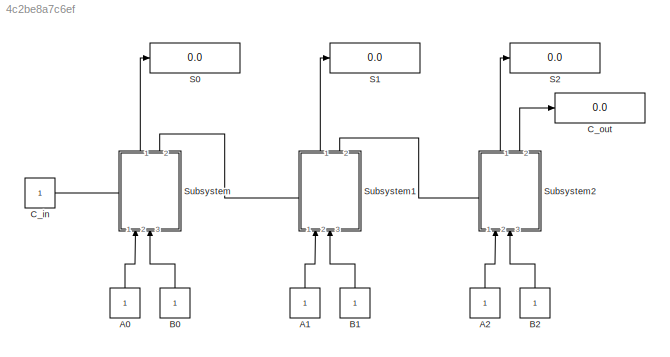
MODEL slx_4c2be8a7c6ef
KIND model
CONFIG AbsTol = auto
CONFIG EnableMultiTasking = off
CONFIG FixedStep = auto
CONFIG MaxStep = auto
CONFIG MinStep = auto
CONFIG RelTol = 1e-3
CONFIG SampleTimeConstraint = Unconstrained
CONFIG SolverName = VariableStepAuto
CONFIG StartTime = 0.0
CONFIG StopTime = 10.0
BLOCK [Constant] A0
BLOCK [Constant] A1
BLOCK [Constant] A2
BLOCK [Constant] B0
BLOCK [Constant] B1
BLOCK [Constant] B2
BLOCK [Constant] C_in
BLOCK [Display] C_out
  Decimation = 1
  Ports = [1]
BLOCK [Display] S0
  Decimation = 1
  Ports = [1]
BLOCK [Display] S1
  Decimation = 1
  Ports = [1]
BLOCK [Display] S2
  Decimation = 1
  Ports = [1]
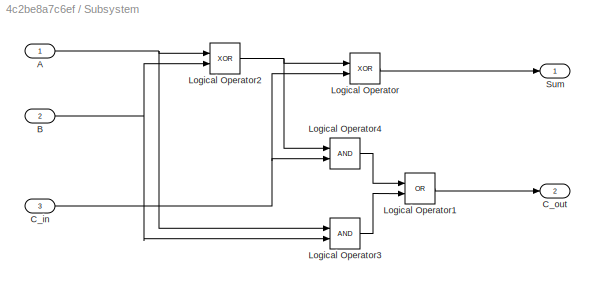
BLOCK [SubSystem] Subsystem
  NameLocation = right
  PortSchema = {"entries":[{"content":{"sides":[{"content":{"connectorIds":["In1","In2"]},"type":"ConnectorPlacement.EquallySpacedRectSide","uuid":"38d1d783-1e84-469f-b88f-34400794f458"},{"content":{"connectorIds":["Out1","Out2"],"side":"RIGHT"},"type":"ConnectorPlacement.EquallySpacedRectSide","uuid":"9549b396-3b16-432f-9c12-dae7a5b8dc11"},{"content":{"connectorIds":["In3"],"side":"TOP"},"type":"ConnectorPlacem...<+258ch>  <repeated x3 — deduplicated; at blocks: Subsystem, Subsystem1, Subsystem2>
  Ports = [3, 2]
  RequestExecContextInheritance = off
BLOCK [Inport] Subsystem/A
BLOCK [Inport] Subsystem/B
  Port = 2
BLOCK [Inport] Subsystem/C_in
  Port = 3
BLOCK [Outport] Subsystem/C_out
  Port = 2
BLOCK [Logic] Subsystem/Logical Operator
  AllPortsSameDT = off
  Operator = XOR
  OutDataTypeStr = boolean
  Ports = [2, 1]
BLOCK [Logic] Subsystem/Logical Operator1
  AllPortsSameDT = off
  Operator = OR
  OutDataTypeStr = boolean
  Ports = [2, 1]
BLOCK [Logic] Subsystem/Logical Operator2
  AllPortsSameDT = off
  Operator = XOR
  OutDataTypeStr = boolean
  Ports = [2, 1]
BLOCK [Logic] Subsystem/Logical Operator3
  AllPortsSameDT = off
  OutDataTypeStr = boolean
  Ports = [2, 1]
BLOCK [Logic] Subsystem/Logical Operator4
  AllPortsSameDT = off
  OutDataTypeStr = boolean
  Ports = [2, 1]
BLOCK [Outport] Subsystem/Sum
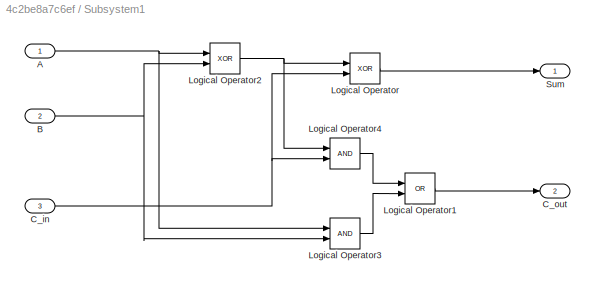
BLOCK [SubSystem] Subsystem1
  NameLocation = right
  Ports = [3, 2]
  RequestExecContextInheritance = off
BLOCK [Inport] Subsystem1/A
BLOCK [Inport] Subsystem1/B
  Port = 2
BLOCK [Inport] Subsystem1/C_in
  Port = 3
BLOCK [Outport] Subsystem1/C_out
  Port = 2
BLOCK [Logic] Subsystem1/Logical Operator
  AllPortsSameDT = off
  Operator = XOR
  OutDataTypeStr = boolean
  Ports = [2, 1]
BLOCK [Logic] Subsystem1/Logical Operator1
  AllPortsSameDT = off
  Operator = OR
  OutDataTypeStr = boolean
  Ports = [2, 1]
BLOCK [Logic] Subsystem1/Logical Operator2
  AllPortsSameDT = off
  Operator = XOR
  OutDataTypeStr = boolean
  Ports = [2, 1]
BLOCK [Logic] Subsystem1/Logical Operator3
  AllPortsSameDT = off
  OutDataTypeStr = boolean
  Ports = [2, 1]
BLOCK [Logic] Subsystem1/Logical Operator4
  AllPortsSameDT = off
  OutDataTypeStr = boolean
  Ports = [2, 1]
BLOCK [Outport] Subsystem1/Sum
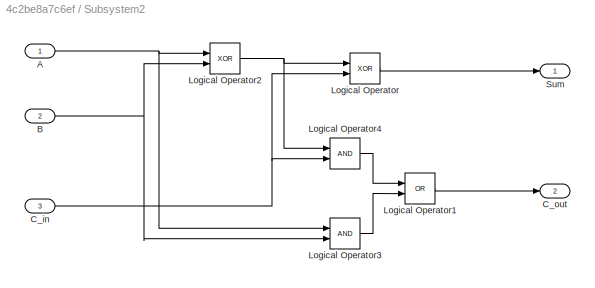
BLOCK [SubSystem] Subsystem2
  NameLocation = right
  Ports = [3, 2]
  RequestExecContextInheritance = off
BLOCK [Inport] Subsystem2/A
BLOCK [Inport] Subsystem2/B
  Port = 2
BLOCK [Inport] Subsystem2/C_in
  Port = 3
BLOCK [Outport] Subsystem2/C_out
  Port = 2
BLOCK [Logic] Subsystem2/Logical Operator
  AllPortsSameDT = off
  Operator = XOR
  OutDataTypeStr = boolean
  Ports = [2, 1]
BLOCK [Logic] Subsystem2/Logical Operator1
  AllPortsSameDT = off
  Operator = OR
  OutDataTypeStr = boolean
  Ports = [2, 1]
BLOCK [Logic] Subsystem2/Logical Operator2
  AllPortsSameDT = off
  Operator = XOR
  OutDataTypeStr = boolean
  Ports = [2, 1]
BLOCK [Logic] Subsystem2/Logical Operator3
  AllPortsSameDT = off
  OutDataTypeStr = boolean
  Ports = [2, 1]
BLOCK [Logic] Subsystem2/Logical Operator4
  AllPortsSameDT = off
  OutDataTypeStr = boolean
  Ports = [2, 1]
BLOCK [Outport] Subsystem2/Sum
LINE A0:1 -> Subsystem:1
LINE A1:1 -> Subsystem1:1
LINE A2:1 -> Subsystem2:1
LINE B0:1 -> Subsystem:2
LINE B1:1 -> Subsystem1:2
LINE B2:1 -> Subsystem2:2
LINE C_in:1 -> Subsystem:3
NET Subsystem/A:1 -> Subsystem/Logical Operator2:1, Subsystem/Logical Operator3:1
NET Subsystem/B:1 -> Subsystem/Logical Operator2:2, Subsystem/Logical Operator3:2
NET Subsystem/C_in:1 -> Subsystem/Logical Operator4:2, Subsystem/Logical Operator:2
LINE Subsystem/Logical Operator1:1 -> Subsystem/C_out:1
NET Subsystem/Logical Operator2:1 -> Subsystem/Logical Operator4:1, Subsystem/Logical Operator:1
LINE Subsystem/Logical Operator3:1 -> Subsystem/Logical Operator1:2
LINE Subsystem/Logical Operator4:1 -> Subsystem/Logical Operator1:1
LINE Subsystem/Logical Operator:1 -> Subsystem/Sum:1
NET Subsystem1/A:1 -> Subsystem1/Logical Operator2:1, Subsystem1/Logical Operator3:1
NET Subsystem1/B:1 -> Subsystem1/Logical Operator2:2, Subsystem1/Logical Operator3:2
NET Subsystem1/C_in:1 -> Subsystem1/Logical Operator4:2, Subsystem1/Logical Operator:2
LINE Subsystem1/Logical Operator1:1 -> Subsystem1/C_out:1
NET Subsystem1/Logical Operator2:1 -> Subsystem1/Logical Operator4:1, Subsystem1/Logical Operator:1
LINE Subsystem1/Logical Operator3:1 -> Subsystem1/Logical Operator1:2
LINE Subsystem1/Logical Operator4:1 -> Subsystem1/Logical Operator1:1
LINE Subsystem1/Logical Operator:1 -> Subsystem1/Sum:1
LINE Subsystem1:1 -> S1:1
LINE Subsystem1:2 -> Subsystem2:3
NET Subsystem2/A:1 -> Subsystem2/Logical Operator2:1, Subsystem2/Logical Operator3:1
NET Subsystem2/B:1 -> Subsystem2/Logical Operator2:2, Subsystem2/Logical Operator3:2
NET Subsystem2/C_in:1 -> Subsystem2/Logical Operator4:2, Subsystem2/Logical Operator:2
LINE Subsystem2/Logical Operator1:1 -> Subsystem2/C_out:1
NET Subsystem2/Logical Operator2:1 -> Subsystem2/Logical Operator4:1, Subsystem2/Logical Operator:1
LINE Subsystem2/Logical Operator3:1 -> Subsystem2/Logical Operator1:2
LINE Subsystem2/Logical Operator4:1 -> Subsystem2/Logical Operator1:1
LINE Subsystem2/Logical Operator:1 -> Subsystem2/Sum:1
LINE Subsystem2:1 -> S2:1
LINE Subsystem2:2 -> C_out:1
LINE Subsystem:1 -> S0:1
LINE Subsystem:2 -> Subsystem1:3
note: NET lines group one-source signal fan-out (src -> all destinations, sorted); 1:1 wires keep LINE
